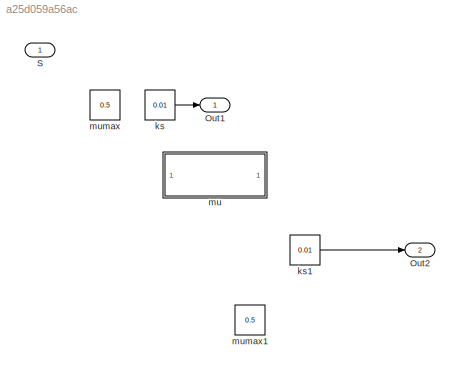
MODEL slx_a25d059a56ac
KIND model
CONFIG AbsTol = auto
CONFIG EnableMultiTasking = off
CONFIG FixedStep = auto
CONFIG MaxStep = auto
CONFIG MinStep = auto
CONFIG RelTol = 1e-3
CONFIG SampleTimeConstraint = Unconstrained
CONFIG SolverName = VariableStepAuto
CONFIG StartTime = 0.0
CONFIG StopTime = 10.0
BLOCK [Outport] Out1
BLOCK [Outport] Out2
  Port = 2
BLOCK [Inport] S
BLOCK [Constant] ks
  Value = 0.01
BLOCK [Constant] ks1
  Value = 0.01
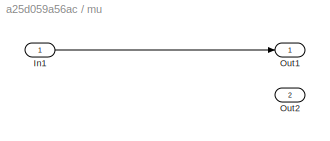
BLOCK [SubSystem] mu
  PortSchema = {"entries":[{"content":{"sides":[{"content":{"connectorIds":["In1"]},"type":"ConnectorPlacement.EquallySpacedRectSide","uuid":"a6e635a6-4007-4649-a7b8-484abb7415bc"},{"content":{"connectorIds":["Out1"],"side":"RIGHT"},"type":"ConnectorPlacement.EquallySpacedRectSide","uuid":"eb4236f6-827d-4522-b902-ca2b49a9f882"},{"content":{"side":"TOP"},"type":"ConnectorPlacement.EquallySpacedRectSide","uuid":"e...<+372ch>
BLOCK [Inport] mu/In1
BLOCK [Outport] mu/Out1
BLOCK [Outport] mu/Out2
  Port = 2
BLOCK [Constant] mumax
  Value = 0.5
BLOCK [Constant] mumax1
  Value = 0.5
LINE ks1:1 -> Out2:1
LINE ks:1 -> Out1:1
LINE mu/In1:1 -> mu/Out1:1
